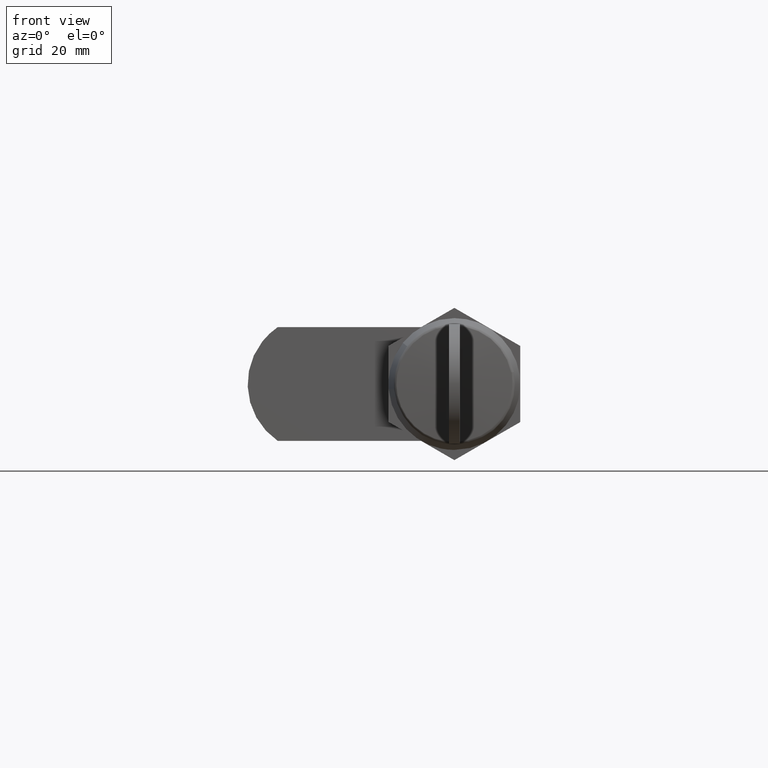
[diagram: clean part render]
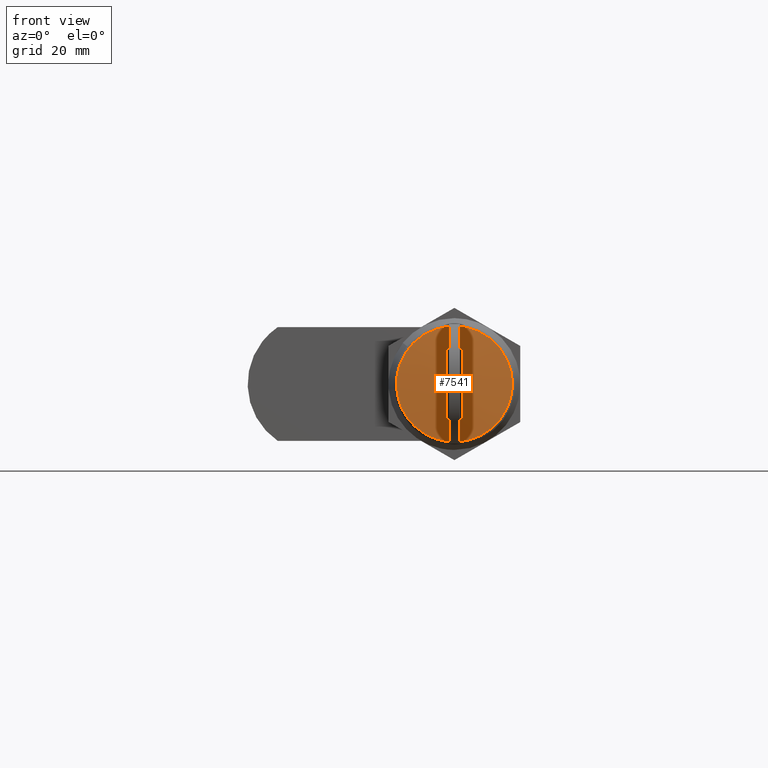
[diagram: same view with one face highlighted and labeled with its STEP entity id]
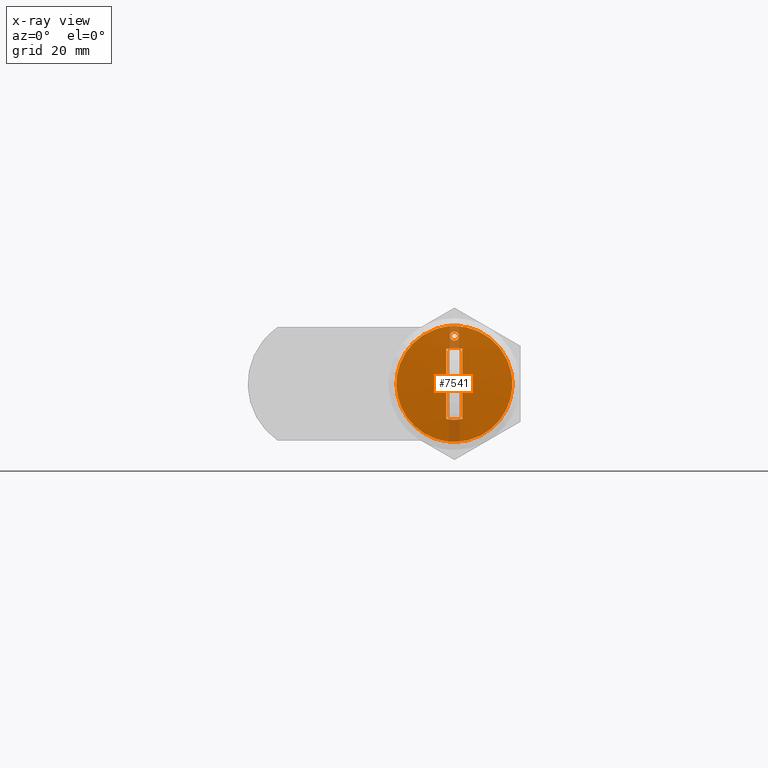
[diagram: x-ray of the same camera — body ghosted, the highlighted face saturated]
A machine part, front view. The second image highlights one B-rep face of the part: STEP entity #7541.
The next image is the same camera in x-ray: the body ghosted, the highlighted face saturated — about 5% of this face is hidden behind the body in this view.
In plain terms, the highlighted face is a freeform B-spline surface patch.
Its self-contained STEP definition (entity closure, byte-faithful):
#6673=CARTESIAN_POINT('',(0.300159271301316,0.701130594300572,7.710393969342759));
#6674=VERTEX_POINT('',#6673);
#6680=CARTESIAN_POINT('',(0.278584860881453,-0.523789653383269,7.440766563371489));
#6681=VERTEX_POINT('',#6680);
#6682=CARTESIAN_POINT('',(0.300159271301316,0.701130594300572,7.710393969342759));
#6683=CARTESIAN_POINT('',(0.299855617532971,0.699684514819121,7.706599039317466));
#6684=CARTESIAN_POINT('',(0.299552699666332,0.698206214077159,7.702813306265453));
#6685=CARTESIAN_POINT('',(0.297431633699869,0.687606588102380,7.676305165217783));
#6686=CARTESIAN_POINT('',(0.295629477603547,0.677287394356344,7.653782618184089));
#6687=CARTESIAN_POINT('',(0.292137312017680,0.654606130221566,7.610139082633721));
#6688=CARTESIAN_POINT('',(0.290447582595863,0.642265790477542,7.589021594279268));
#6689=CARTESIAN_POINT('',(0.285543107075553,0.602322770441146,7.527727635999382));
#6690=CARTESIAN_POINT('',(0.282491478543643,0.571826387779951,7.489589737023952));
#6691=CARTESIAN_POINT('',(0.276839695696463,0.502824478883514,7.418956263453228));
#6692=CARTESIAN_POINT('',(0.274314453506199,0.465183498328585,7.387396907347681));
#6693=CARTESIAN_POINT('',(0.271003037268653,0.404802123103559,7.346012296929916));
#6694=CARTESIAN_POINT('',(0.269976611089082,0.383985046248918,7.333184478100418));
#6695=CARTESIAN_POINT('',(0.268081499542128,0.340944396895276,7.309500215101514));
#6696=CARTESIAN_POINT('',(0.267209458701839,0.318603128903870,7.298601835721046));
#6697=CARTESIAN_POINT('',(0.264885068867037,0.250753862718366,7.269552643208903));
#6698=CARTESIAN_POINT('',(0.263706251253156,0.204180140043509,7.254820303869941));
#6699=CARTESIAN_POINT('',(0.262078470509144,0.108393237841327,7.234477022595701));
#6700=CARTESIAN_POINT('',(0.261635238742224,0.058752204721457,7.228937708693934));
#6701=CARTESIAN_POINT('',(0.261533256415622,-0.039167328316873,7.227663178839291));
#6702=CARTESIAN_POINT('',(0.261861357637449,-0.087858062038528,7.231763642287317));
#6703=CARTESIAN_POINT('',(0.262931706975338,-0.160483829682612,7.245140393254832));
#6704=CARTESIAN_POINT('',(0.263388114322641,-0.184687765166290,7.250844369712308));
#6705=CARTESIAN_POINT('',(0.264477022635454,-0.231909923866102,7.264453062511318));
#6706=CARTESIAN_POINT('',(0.265110807257931,-0.255055498408913,7.272373821427845));
#6707=CARTESIAN_POINT('',(0.267275187435311,-0.323121580899236,7.299423284259245));
#6708=CARTESIAN_POINT('',(0.269073281090400,-0.366820399458291,7.321895060705325));
#6709=CARTESIAN_POINT('',(0.273370964418780,-0.449835456988199,7.375605599485481));
#6710=CARTESIAN_POINT('',(0.275824813367651,-0.488326625750851,7.406272714546898));
#6711=CARTESIAN_POINT('',(0.278584860881453,-0.523789653383270,7.440766563371490));
#6712=B_SPLINE_CURVE_WITH_KNOTS('',3,(#6682,#6683,#6684,#6685,#6686,#6687,#6688,#6689,#6690,#6691,#6692,#6693,#6694,#6695,#6696,#6697,#6698,#6699,#6700,#6701,#6702,#6703,#6704,#6705,#6706,#6707,#6708,#6709,#6710,#6711),.UNSPECIFIED.,.F.,.U.,(4,2,2,2,2,2,2,2,2,2,2,2,2,2,4),(0.684904013886884,0.687499999999999,0.703124999999999,0.718749999999999,0.749999999999999,0.781249999999999,0.796874999999999,0.812499999999999,0.843749999999999,0.874999999999999,0.906250000000000,0.921875000000000,0.937500000000000,0.968750000000000,1.0),.UNSPECIFIED.);
#6713=EDGE_CURVE('',#6674,#6681,#6712,.T.);
#6715=CARTESIAN_POINT('',(0.378445533027694,0.225766074778682,8.688780922300953));
#6716=VERTEX_POINT('',#6715);
#6717=CARTESIAN_POINT('',(0.278584860881453,-0.523789653383269,7.440766563371489));
#6718=CARTESIAN_POINT('',(0.281344908395255,-0.559252681015691,7.475260412196083));
#6719=CARTESIAN_POINT('',(0.284336381043423,-0.590727627309438,7.512646509635831));
#6720=CARTESIAN_POINT('',(0.289156530896685,-0.632202574379577,7.572886603155555));
#6721=CARTESIAN_POINT('',(0.290819150283770,-0.645064200738935,7.593665282328334));
#6722=CARTESIAN_POINT('',(0.294258745604684,-0.668816780690184,7.636651818039793));
#6723=CARTESIAN_POINT('',(0.296041583065087,-0.679725346184545,7.658932929336068));
#6724=CARTESIAN_POINT('',(0.301447905203081,-0.708762325652259,7.726498743907190));
#6725=CARTESIAN_POINT('',(0.305162596710400,-0.723505750587238,7.772923309659156));
#6726=CARTESIAN_POINT('',(0.312810953708613,-0.743846161051148,7.868509080822014));
#6727=CARTESIAN_POINT('',(0.316769593971589,-0.749349233737392,7.917982409849639));
#6728=CARTESIAN_POINT('',(0.324573997638959,-0.750539937230626,8.015518383024800));
#6729=CARTESIAN_POINT('',(0.328458867677249,-0.746390632125178,8.064069764525994));
#6730=CARTESIAN_POINT('',(0.334259554580444,-0.732879835161017,8.136564174900107));
#6731=CARTESIAN_POINT('',(0.336186906802460,-0.727139290608939,8.160651367546405));
#6732=CARTESIAN_POINT('',(0.339947648082027,-0.713460279906678,8.207651442913628));
#6733=CARTESIAN_POINT('',(0.343636331496297,-0.697539812699091,8.253750971062361));
#6734=CARTESIAN_POINT('',(0.347183078220645,-0.677204214459772,8.298076637456287));
#6735=CARTESIAN_POINT('',(0.350657890207087,-0.654630989757610,8.341503295423165));
#6736=CARTESIAN_POINT('',(0.352367994438488,-0.642152148673480,8.362875419104871));
#6737=CARTESIAN_POINT('',(0.357317810412993,-0.601784773418061,8.424736022257655));
#6738=CARTESIAN_POINT('',(0.360361148332814,-0.571209742928173,8.462770308842581));
#6739=CARTESIAN_POINT('',(0.365948438363678,-0.502928327229403,8.532597779819071));
#6740=CARTESIAN_POINT('',(0.368513398449972,-0.464749824540594,8.564653512561218));
#6741=CARTESIAN_POINT('',(0.372938975757160,-0.383880561754712,8.619962413524815));
#6742=CARTESIAN_POINT('',(0.374819430913943,-0.341099273756177,8.643463507464444));
#6743=CARTESIAN_POINT('',(0.377138837672253,-0.273387756992893,8.672450423698246));
#6744=CARTESIAN_POINT('',(0.377830714894342,-0.250090484022278,8.681097198141284));
#6745=CARTESIAN_POINT('',(0.379018078089444,-0.203123194986766,8.695936336361527));
#6746=CARTESIAN_POINT('',(0.379515846766553,-0.179426249798323,8.702157228361225));
#6747=CARTESIAN_POINT('',(0.380728322706604,-0.107710876407153,8.717310214521946));
#6748=CARTESIAN_POINT('',(0.381164941037054,-0.059074006439434,8.722766876630001));
#6749=CARTESIAN_POINT('',(0.381265784594414,0.039917457930251,8.724027174652079));
#6750=CARTESIAN_POINT('',(0.380927045114597,0.088811056060332,8.719793758977307));
#6751=CARTESIAN_POINT('',(0.379860492590610,0.160866088742602,8.706464458904772));
#6752=CARTESIAN_POINT('',(0.379411233440203,0.184692576354957,8.700849817439456));
#6753=CARTESIAN_POINT('',(0.378731961887994,0.214146488991716,8.692360583063747));
#6754=CARTESIAN_POINT('',(0.378591618326729,0.219963550598461,8.690606631524307));
#6755=CARTESIAN_POINT('',(0.378445533027694,0.225766074778682,8.688780922300953));
#6756=B_SPLINE_CURVE_WITH_KNOTS('',3,(#6717,#6718,#6719,#6720,#6721,#6722,#6723,#6724,#6725,#6726,#6727,#6728,#6729,#6730,#6731,#6732,#6733,#6734,#6735,#6736,#6737,#6738,#6739,#6740,#6741,#6742,#6743,#6744,#6745,#6746,#6747,#6748,#6749,#6750,#6751,#6752,#6753,#6754,#6755),.UNSPECIFIED.,.F.,.U.,(4,2,2,2,2,2,2,2,1,2,2,2,2,2,2,2,2,2,2,4),(0.0,0.031250000000003,0.046875000000004,0.062500000000005,0.093750000000006,0.125000000000007,0.156250000000008,0.171875000000008,0.187500000000008,0.203125000000008,0.218750000000008,0.250000000000007,0.281250000000006,0.312500000000005,0.328125000000005,0.343750000000005,0.375000000000004,0.406250000000003,0.421875000000003,0.425725489204131),.UNSPECIFIED.);
#6757=EDGE_CURVE('',#6681,#6716,#6756,.T.);
#6801=CARTESIAN_POINT('',(0.364229293935231,0.523599874790095,8.511112675767238));
#6802=VERTEX_POINT('',#6801);
#6803=CARTESIAN_POINT('',(0.378445533027694,0.225766074778682,8.688780922300953));
#6804=CARTESIAN_POINT('',(0.377998557272234,0.243507886925480,8.683194817685877));
#6805=CARTESIAN_POINT('',(0.377497360646554,0.261109898108830,8.676931084706236));
#6806=CARTESIAN_POINT('',(0.375492674973847,0.324002245849758,8.651877412916383));
#6807=CARTESIAN_POINT('',(0.373698532461046,0.367371750230485,8.629455016092987));
#6808=CARTESIAN_POINT('',(0.369442454310505,0.449545729231534,8.576264440359683));
#6809=CARTESIAN_POINT('',(0.366954719986882,0.488556914998954,8.545173840924051));
#6810=CARTESIAN_POINT('',(0.364229293935231,0.523599874790099,8.511112675767235));
#6811=B_SPLINE_CURVE_WITH_KNOTS('',3,(#6803,#6804,#6805,#6806,#6807,#6808,#6809,#6810),.UNSPECIFIED.,.F.,.U.,(4,2,2,4),(0.425725489204131,0.437500000000002,0.468750000000002,0.500000000000001),.UNSPECIFIED.);
#6812=EDGE_CURVE('',#6716,#6802,#6811,.T.);
#6814=CARTESIAN_POINT('',(0.364229293935231,0.523599874790099,8.511112675767235));
#6815=CARTESIAN_POINT('',(0.361503867883580,0.558642834581243,8.477051510610417));
#6816=CARTESIAN_POINT('',(0.358524336322904,0.590156112651515,8.439814647582585));
#6817=CARTESIAN_POINT('',(0.353666131843793,0.632023870544305,8.379098964238942));
#6818=CARTESIAN_POINT('',(0.351978650815609,0.645073974366570,8.358009575310062));
#6819=CARTESIAN_POINT('',(0.348546704210245,0.668776128035077,8.315118629850772));
#6820=CARTESIAN_POINT('',(0.345040115455904,0.690245410438050,8.271294839942208));
#6821=CARTESIAN_POINT('',(0.341386750080056,0.707323965818053,8.225636700962641));
#6822=CARTESIAN_POINT('',(0.337659124558983,0.722181077326043,8.179050491647192));
#6823=CARTESIAN_POINT('',(0.335749238917718,0.728521463651403,8.155181588574871));
#6824=CARTESIAN_POINT('',(0.329968078250330,0.743908550349163,8.082931208429478));
#6825=CARTESIAN_POINT('',(0.326090787527044,0.749287662020342,8.034474549843182));
#6826=CARTESIAN_POINT('',(0.320241121373507,0.750257901996596,7.961368018536952));
#6827=CARTESIAN_POINT('',(0.318285570221303,0.749389666991409,7.936928408176783));
#6828=CARTESIAN_POINT('',(0.314362819170323,0.745201740852900,7.887903606591893));
#6829=CARTESIAN_POINT('',(0.312402336961477,0.741874072015014,7.863402370074313));
#6830=CARTESIAN_POINT('',(0.306950632792973,0.729182324194915,7.795269391027957));
#6831=CARTESIAN_POINT('',(0.303510808784918,0.717096657509951,7.752279997286168));
#6832=CARTESIAN_POINT('',(0.300159271301316,0.701130594300572,7.710393969342759));
#6833=B_SPLINE_CURVE_WITH_KNOTS('',3,(#6814,#6815,#6816,#6817,#6818,#6819,#6820,#6821,#6822,#6823,#6824,#6825,#6826,#6827,#6828,#6829,#6830,#6831,#6832),.UNSPECIFIED.,.F.,.U.,(4,2,2,1,2,2,2,2,2,4),(0.500000000000001,0.531250000000001,0.546875000000000,0.562500000000000,0.578125000000000,0.593749999999999,0.624999999999999,0.640624999999999,0.656249999999999,0.684904013886886),.UNSPECIFIED.);
#6834=EDGE_CURVE('',#6802,#6674,#6833,.T.);
#7089=CARTESIAN_POINT('',(0.468943751910371,-9.478241625974258,1.931815774197963));
#7090=VERTEX_POINT('',#7089);
#7104=CARTESIAN_POINT('',(0.468943722065800,0.0,-9.673105528469440));
#7105=VERTEX_POINT('',#7104);
#7106=CARTESIAN_POINT('',(0.468943722065800,0.0,-9.673105528469440));
#7107=CARTESIAN_POINT('',(0.468943722065800,-9.673105528469442,-9.673105528469442));
#7108=CARTESIAN_POINT('',(0.468943722065800,-9.673105528469440,0.0));
#7109=CARTESIAN_POINT('',(0.468943722065800,-9.673105528469440,0.975735929080588));
#7110=CARTESIAN_POINT('',(0.468943751910371,-9.478241625974256,1.931815774197964));
#7118=(BOUNDED_CURVE()B_SPLINE_CURVE(2,(#7106,#7107,#7108,#7109,#7110),.UNSPECIFIED.,.F.,.U.)B_SPLINE_CURVE_WITH_KNOTS((3,2,3),(0.500000000000000,0.750000000000000,0.784232961361366),.UNSPECIFIED.)CURVE()GEOMETRIC_REPRESENTATION_ITEM()RATIONAL_B_SPLINE_CURVE((1.0,0.707106781186547,1.0,0.959893591029412,0.930770871247890))REPRESENTATION_ITEM(''));
#7119=EDGE_CURVE('',#7105,#7090,#7118,.T.);
#7121=CARTESIAN_POINT('',(0.468943751906344,3.013292957503454,9.191792102590750));
#7122=VERTEX_POINT('',#7121);
#7123=CARTESIAN_POINT('',(0.468943751906344,3.013292957503454,9.191792102590750));
#7124=CARTESIAN_POINT('',(0.468943722065800,9.673105528469442,7.008543282345916));
#7125=CARTESIAN_POINT('',(0.468943722065800,9.673105528469440,0.0));
#7126=CARTESIAN_POINT('',(0.468943722065800,9.673105528469442,-9.673105528469442));
#7127=CARTESIAN_POINT('',(0.468943722065800,0.0,-9.673105528469440));
#7135=(BOUNDED_CURVE()B_SPLINE_CURVE(2,(#7123,#7124,#7125,#7126,#7127),.UNSPECIFIED.,.F.,.U.)B_SPLINE_CURVE_WITH_KNOTS((3,2,3),(0.052968605904176,0.250000000000000,0.500000000000000),.UNSPECIFIED.)CURVE()GEOMETRIC_REPRESENTATION_ITEM()RATIONAL_B_SPLINE_CURVE((0.902183241216036,0.769163363103889,1.0,0.707106781186547,1.0))REPRESENTATION_ITEM(''));
#7136=EDGE_CURVE('',#7122,#7105,#7135,.T.);
#7179=CARTESIAN_POINT('',(0.468943722065800,0.0,9.673105528469440));
#7180=VERTEX_POINT('',#7179);
#7181=CARTESIAN_POINT('',(0.468943722065800,0.0,9.673105528469440));
#7182=CARTESIAN_POINT('',(0.468943722065800,1.545086585039350,9.673105528469440));
#7183=CARTESIAN_POINT('',(0.468943751906344,3.013292957503454,9.191792102590750));
#7191=(BOUNDED_CURVE()B_SPLINE_CURVE(2,(#7181,#7182,#7183),.UNSPECIFIED.,.F.,.U.)B_SPLINE_CURVE_WITH_KNOTS((3,3),(0.0,0.052968605904176),.UNSPECIFIED.)CURVE()GEOMETRIC_REPRESENTATION_ITEM()RATIONAL_B_SPLINE_CURVE((1.0,0.937943418082658,0.902183241216036))REPRESENTATION_ITEM(''));
#7192=EDGE_CURVE('',#7180,#7122,#7191,.T.);
#7194=CARTESIAN_POINT('',(0.468943751910371,-9.478241625974258,1.931815774197963));
#7195=CARTESIAN_POINT('',(0.468943722065800,-7.900443845498501,9.673105528469440));
#7196=CARTESIAN_POINT('',(0.468943722065800,0.0,9.673105528469440));
#7204=(BOUNDED_CURVE()B_SPLINE_CURVE(2,(#7194,#7195,#7196),.UNSPECIFIED.,.F.,.U.)B_SPLINE_CURVE_WITH_KNOTS((3,3),(0.784232961361366,1.0),.UNSPECIFIED.)CURVE()GEOMETRIC_REPRESENTATION_ITEM()RATIONAL_B_SPLINE_CURVE((0.930770871247890,0.747213190157135,1.0))REPRESENTATION_ITEM(''));
#7205=EDGE_CURVE('',#7090,#7180,#7204,.T.);
#7341=CARTESIAN_POINT('',(0.180162292257841,1.349999908136044,-5.846152602184850));
#7342=VERTEX_POINT('',#7341);
#7348=CARTESIAN_POINT('',(0.180162292257813,-1.350000000000000,-5.846152580971530));
#7349=VERTEX_POINT('',#7348);
#7350=CARTESIAN_POINT('',(0.180162292257841,1.349999908136043,-5.846152602184849));
#7351=CARTESIAN_POINT('',(0.180162292257841,-0.000000048381280,-6.157896058317166));
#7352=CARTESIAN_POINT('',(0.180162292257813,-1.350000000000000,-5.846152580971530));
#7360=(BOUNDED_CURVE()B_SPLINE_CURVE(2,(#7350,#7351,#7352),.UNSPECIFIED.,.F.,.U.)CURVE()GEOMETRIC_REPRESENTATION_ITEM()QUASI_UNIFORM_CURVE()RATIONAL_B_SPLINE_CURVE((1.0,0.974358765263031,1.0))REPRESENTATION_ITEM(''));
#7361=EDGE_CURVE('',#7342,#7349,#7360,.T.);
#7378=CARTESIAN_POINT('',(0.180162292257743,1.350000000000000,5.846152580971530));
#7379=VERTEX_POINT('',#7378);
#7385=CARTESIAN_POINT('',(0.180162292257743,1.350000000000000,5.846152580971530));
#7386=CARTESIAN_POINT('',(-0.162229569388786,1.350000000000000,-0.000000010606564));
#7387=CARTESIAN_POINT('',(0.180162292257841,1.349999908136044,-5.846152602184850));
#7395=(BOUNDED_CURVE()B_SPLINE_CURVE(2,(#7385,#7386,#7387),.UNSPECIFIED.,.F.,.U.)CURVE()GEOMETRIC_REPRESENTATION_ITEM()QUASI_UNIFORM_CURVE()RATIONAL_B_SPLINE_CURVE((1.0,0.998289350333439,1.0))REPRESENTATION_ITEM(''));
#7396=EDGE_CURVE('',#7379,#7342,#7395,.T.);
#7418=CARTESIAN_POINT('',(0.180162292257813,-1.350000000000000,5.846152580971530));
#7419=VERTEX_POINT('',#7418);
#7425=CARTESIAN_POINT('',(0.180162292257813,-1.350000000000000,5.846152580971530));
#7426=CARTESIAN_POINT('',(0.180162292257841,0.0,6.157896069489425));
#7427=CARTESIAN_POINT('',(0.180162292257743,1.350000000000000,5.846152580971530));
#7435=(BOUNDED_CURVE()B_SPLINE_CURVE(2,(#7425,#7426,#7427),.UNSPECIFIED.,.F.,.U.)CURVE()GEOMETRIC_REPRESENTATION_ITEM()QUASI_UNIFORM_CURVE()RATIONAL_B_SPLINE_CURVE((1.0,0.974358763495254,1.0))REPRESENTATION_ITEM(''));
#7436=EDGE_CURVE('',#7419,#7379,#7435,.T.);
#7450=CARTESIAN_POINT('',(0.180162292257813,-1.350000000000000,-5.846152580971530));
#7451=CARTESIAN_POINT('',(-0.162229568767588,-1.350000000000000,-3.642919E-014));
#7452=CARTESIAN_POINT('',(0.180162292257813,-1.350000000000000,5.846152580971530));
#7460=(BOUNDED_CURVE()B_SPLINE_CURVE(2,(#7450,#7451,#7452),.UNSPECIFIED.,.F.,.U.)CURVE()GEOMETRIC_REPRESENTATION_ITEM()QUASI_UNIFORM_CURVE()RATIONAL_B_SPLINE_CURVE((1.0,0.998289350339630,1.0))REPRESENTATION_ITEM(''));
#7461=EDGE_CURVE('',#7349,#7419,#7460,.T.);
#7499=CARTESIAN_POINT('',(1.130546150623343,-10.601071229419757,10.604168251906525));
#7500=CARTESIAN_POINT('',(0.567040386605690,-5.315554926692959,10.634215651428670));
#7501=CARTESIAN_POINT('',(0.567040386605690,5.314767058998221,10.634215651428670));
#7502=CARTESIAN_POINT('',(1.130379589989284,10.599508823812469,10.604177133295568));
#7503=CARTESIAN_POINT('',(0.566710157027228,-10.631127456829880,5.317116630007664));
#7504=CARTESIAN_POINT('',(2.842171E-014,-5.330668448181578,5.332225762503530));
#7505=CARTESIAN_POINT('',(2.842171E-014,5.329878340371651,5.332225762503530));
#7506=CARTESIAN_POINT('',(0.566542650586263,10.629560646720732,5.317121095918467));
#7507=CARTESIAN_POINT('',(0.566710157027228,-10.631127456829880,-5.317117304133028));
#7508=CARTESIAN_POINT('',(2.842171E-014,-5.330668448181578,-5.332226438544490));
#7509=CARTESIAN_POINT('',(2.842171E-014,5.329878340371651,-5.332226438544490));
#7510=CARTESIAN_POINT('',(0.566542650586263,10.629560646720732,-5.317121770044397));
#7511=CARTESIAN_POINT('',(1.130546293189923,-10.601071221820012,-10.604169588743526));
#7512=CARTESIAN_POINT('',(0.567040529981352,-5.315554922871521,-10.634216992032055));
#7513=CARTESIAN_POINT('',(0.567040529981352,5.314767055177351,-10.634216992032055));
#7514=CARTESIAN_POINT('',(1.130379732556100,10.599508816213829,-10.604178470133673));
#7522=(BOUNDED_SURFACE()B_SPLINE_SURFACE(2,2,((#7499,#7503,#7507,#7511),(#7500,#7504,#7508,#7512),(#7501,#7505,#7509,#7513),(#7502,#7506,#7510,#7514)),.UNSPECIFIED.,.F.,.F.,.U.)B_SPLINE_SURFACE_WITH_KNOTS((3,1,3),(3,1,3),(34.251781968879698,44.640580472222297,55.027839155387881),(34.248746960258487,44.640580472222290,55.032415301704397),.UNSPECIFIED.)GEOMETRIC_REPRESENTATION_ITEM()RATIONAL_B_SPLINE_SURFACE(((1.005684865768675,1.002841602610444,1.002841602610444,1.005684866489635),(1.002843263158231,1.0,1.0,1.002843263879191),(1.002843263158231,1.0,1.0,1.002843263879191),(1.005684023470547,1.002840760312316,1.002840760312316,1.005684024191508)))REPRESENTATION_ITEM('')SURFACE());
#7523=ORIENTED_EDGE('',*,*,#7192,.T.);
#7524=ORIENTED_EDGE('',*,*,#7136,.T.);
#7525=ORIENTED_EDGE('',*,*,#7119,.T.);
#7526=ORIENTED_EDGE('',*,*,#7205,.T.);
#7527=EDGE_LOOP('',(#7523,#7524,#7525,#7526));
#7528=FACE_OUTER_BOUND('',#7527,.T.);
#7529=ORIENTED_EDGE('',*,*,#7461,.F.);
#7530=ORIENTED_EDGE('',*,*,#7361,.F.);
#7531=ORIENTED_EDGE('',*,*,#7396,.F.);
#7532=ORIENTED_EDGE('',*,*,#7436,.F.);
#7533=EDGE_LOOP('',(#7529,#7530,#7531,#7532));
#7534=FACE_BOUND('',#7533,.T.);
#7535=ORIENTED_EDGE('',*,*,#6834,.F.);
#7536=ORIENTED_EDGE('',*,*,#6812,.F.);
#7537=ORIENTED_EDGE('',*,*,#6757,.F.);
#7538=ORIENTED_EDGE('',*,*,#6713,.F.);
#7539=EDGE_LOOP('',(#7535,#7536,#7537,#7538));
#7540=FACE_BOUND('',#7539,.T.);
#7541=ADVANCED_FACE('',(#7528,#7534,#7540),#7522,.T.);